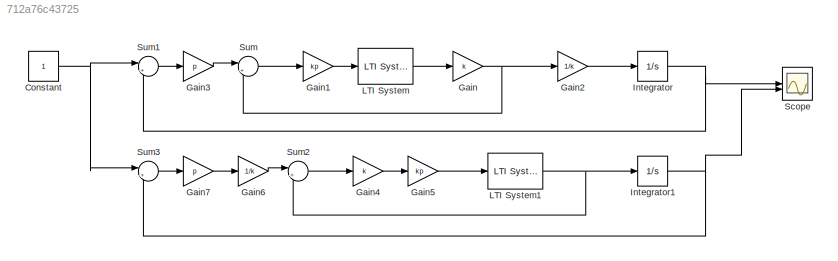
MODEL slx_712a76c43725
KIND model
CONFIG AbsTol = auto
CONFIG EnableMultiTasking = off
CONFIG FixedStep = auto
CONFIG MaxStep = 1e-4
CONFIG MinStep = auto
CONFIG RelTol = 1e-3
CONFIG SampleTimeConstraint = Unconstrained
CONFIG SolverName = VariableStepAuto
CONFIG StartTime = 0.0
CONFIG StopTime = 3
BLOCK [Constant] Constant
BLOCK [Gain] Gain
  Gain = k
BLOCK [Gain] Gain1
  Gain = kp
BLOCK [Gain] Gain2
  Gain = 1/k
BLOCK [Gain] Gain3
  Gain = p
BLOCK [Gain] Gain4
  Gain = k
BLOCK [Gain] Gain5
  Gain = kp
BLOCK [Gain] Gain6
  Gain = 1/k
BLOCK [Gain] Gain7
  Gain = p
BLOCK [Integrator] Integrator
BLOCK [Integrator] Integrator1
BLOCK [Reference] LTI System  REF=cstblocks/LTI System
  SourceBlock = cstblocks/LTI System
  SourceType = LTI Block
BLOCK [Reference] LTI System1  REF=cstblocks/LTI System
  SourceBlock = cstblocks/LTI System
  SourceType = LTI Block
BLOCK [Scope] Scope
  Floating = off
  NumInputPorts = 2
  ScopeSpecificationString = Simulink.scopes.TimeScopeBlockCfg('CurrentConfiguration', extmgr.ConfigurationSet(extmgr.Configuration('Core','General UI',true),extmgr.Configuration('Core','Source UI',true),extmgr.Configuration('Sources','WiredSimulink',true),extmgr.Configuration('Visuals','Time Domain',true,'SerializedDisplays',{struct('MinYLimReal','-0.12498','MaxYLimReal','1.12485','YLabelReal','','MinYLimMag','0.00000','MaxY...<+1400ch>
BLOCK [Sum] Sum
  Inputs = |+-
BLOCK [Sum] Sum1
  Inputs = |+-
BLOCK [Sum] Sum2
  Inputs = |+-
BLOCK [Sum] Sum3
  Inputs = |+-
NET Constant:1 -> Sum1:1, Sum3:1
LINE Gain1:1 -> LTI System:1
LINE Gain2:1 -> Integrator:1
LINE Gain3:1 -> Sum:1
LINE Gain4:1 -> Gain5:1
LINE Gain5:1 -> LTI System1:1
LINE Gain6:1 -> Sum2:1
LINE Gain7:1 -> Gain6:1
NET Gain:1 -> Gain2:1, Sum:2
NET Integrator1:1 -> Scope:2, Sum3:2
NET Integrator:1 -> Scope:1, Sum1:2
NET LTI System1:1 -> Integrator1:1, Sum2:2
LINE LTI System:1 -> Gain:1
LINE Sum1:1 -> Gain3:1
LINE Sum2:1 -> Gain4:1
LINE Sum3:1 -> Gain7:1
LINE Sum:1 -> Gain1:1
note: NET lines group one-source signal fan-out (src -> all destinations, sorted); 1:1 wires keep LINE
